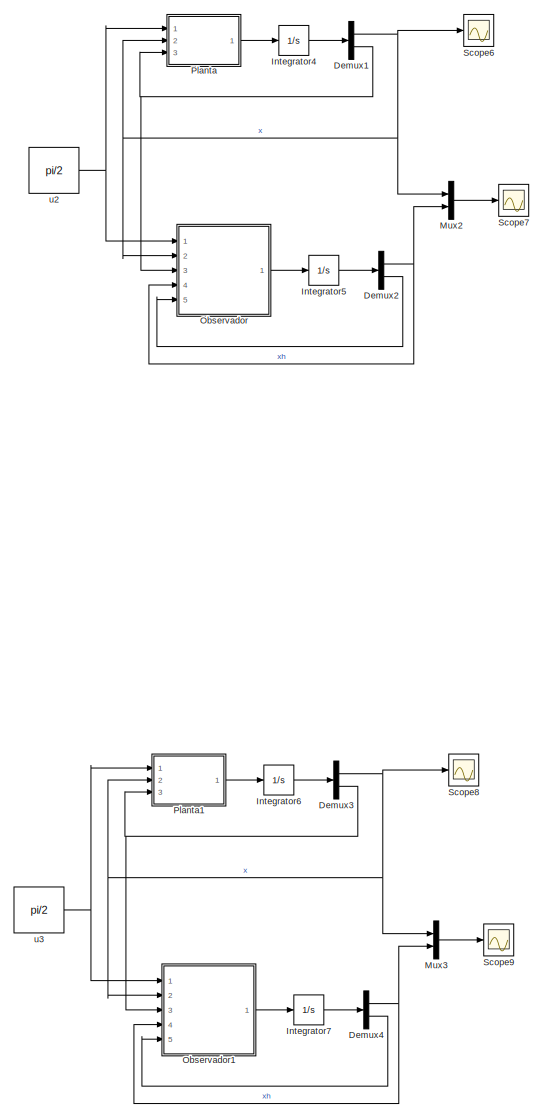
[diagram: root canvas - part 1/3, middle right region]
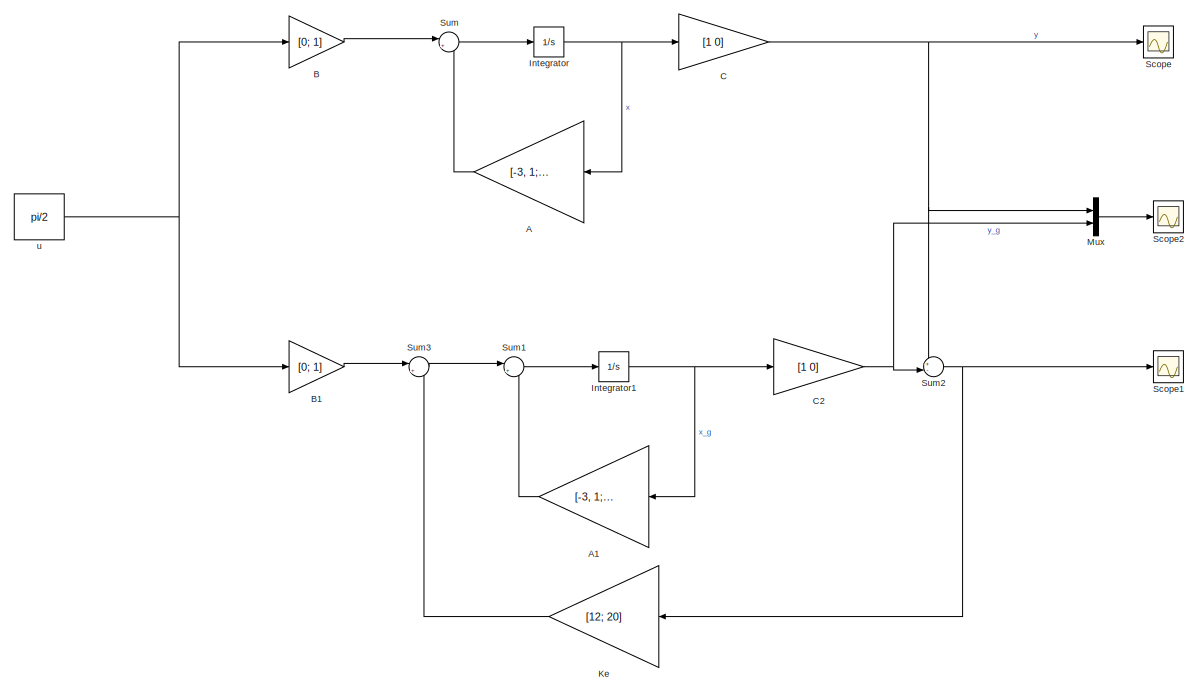
[diagram: root canvas - part 2/3, top left region]
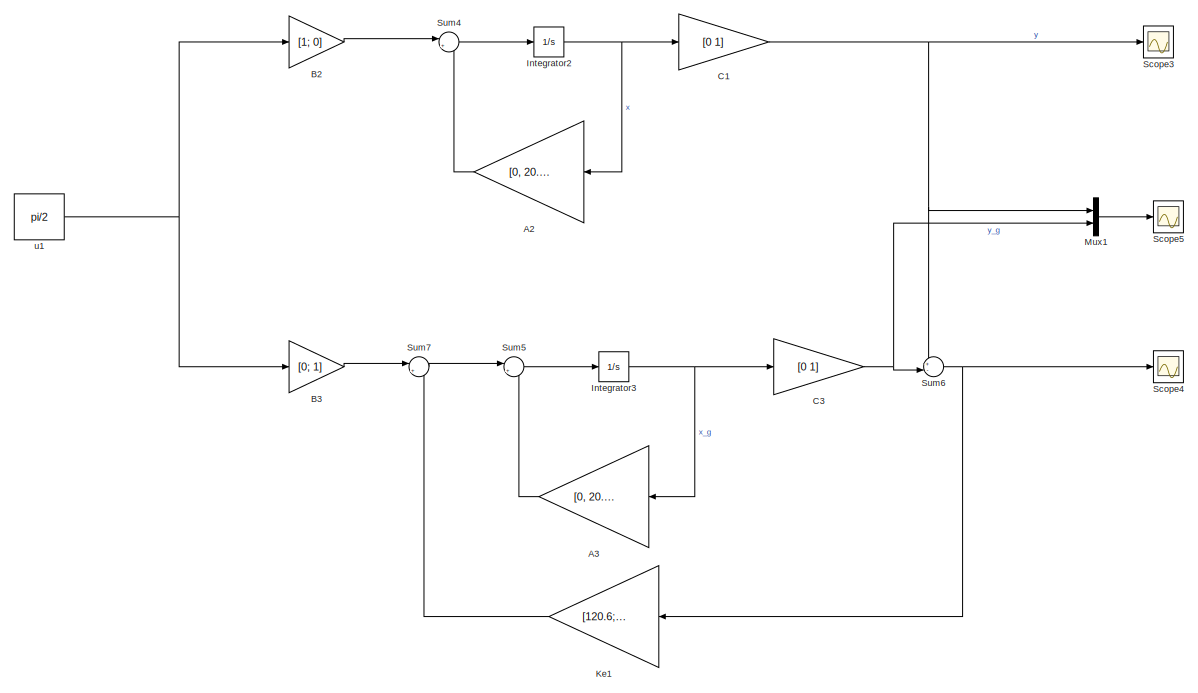
[diagram: root canvas - part 3/3, bottom left region]
MODEL slx_43d136db9c63
KIND model
CONFIG AbsTol = auto
CONFIG EnableMultiTasking = off
CONFIG FixedStep = auto
CONFIG MaxStep = auto
CONFIG MinStep = auto
CONFIG RelTol = 1e-3
CONFIG SampleTimeConstraint = Unconstrained
CONFIG SolverName = VariableStepAuto
CONFIG StartTime = 0.0
CONFIG StopTime = 10.0
BLOCK [Gain] A
  Gain = [-3, 1; 0, -5]
  Multiplication = Matrix(K*u)
BLOCK [Gain] A1
  Gain = [-3, 1; 0, -5]
  Multiplication = Matrix(K*u)
BLOCK [Gain] A2
  Gain = [0, 20.6; 1, 0]
  Multiplication = Matrix(K*u)
BLOCK [Gain] A3
  Gain = [0, 20.6; 1, 0]
  Multiplication = Matrix(K*u)
BLOCK [Gain] B
  Gain = [0; 1]
BLOCK [Gain] B1
  Gain = [0; 1]
BLOCK [Gain] B2
  Gain = [1; 0]
BLOCK [Gain] B3
  Gain = [0; 1]
BLOCK [Gain] C
  Gain = [1 0]
  Multiplication = Matrix(K*u) (u vector)
BLOCK [Gain] C1
  Gain = [0 1]
  Multiplication = Matrix(K*u) (u vector)
BLOCK [Gain] C2
  Gain = [1 0]
  Multiplication = Matrix(K*u) (u vector)
BLOCK [Gain] C3
  Gain = [0 1]
  Multiplication = Matrix(K*u) (u vector)
BLOCK [Demux] Demux1
  Outputs = 2
  Ports = [1, 2]
BLOCK [Demux] Demux2
  Outputs = 2
  Ports = [1, 2]
BLOCK [Demux] Demux3
  Outputs = 2
  Ports = [1, 2]
BLOCK [Demux] Demux4
  Outputs = 2
  Ports = [1, 2]
BLOCK [Integrator] Integrator
  InitialCondition = [1; 0]
  Ports = [1, 1]
BLOCK [Integrator] Integrator1
  Ports = [1, 1]
BLOCK [Integrator] Integrator2
  InitialCondition = [1; 0]
  Ports = [1, 1]
BLOCK [Integrator] Integrator3
  Ports = [1, 1]
BLOCK [Integrator] Integrator4
  InitialCondition = [0; 0]
  Ports = [1, 1]
BLOCK [Integrator] Integrator5
  Ports = [1, 1]
BLOCK [Integrator] Integrator6
  InitialCondition = [1; 0]
  Ports = [1, 1]
BLOCK [Integrator] Integrator7
  Ports = [1, 1]
BLOCK [Gain] Ke
  Gain = [12; 20]
  Multiplication = Matrix(K*u)
BLOCK [Gain] Ke1
  Gain = [120.6; 20]
  Multiplication = Matrix(K*u)
BLOCK [Mux] Mux
  DisplayOption = bar
  Inputs = 2
  Ports = [2, 1]
BLOCK [Mux] Mux1
  DisplayOption = bar
  Inputs = 2
  Ports = [2, 1]
BLOCK [Mux] Mux2
  DisplayOption = bar
  Inputs = 2
  Ports = [2, 1]
BLOCK [Mux] Mux3
  DisplayOption = bar
  Inputs = 2
  Ports = [2, 1]
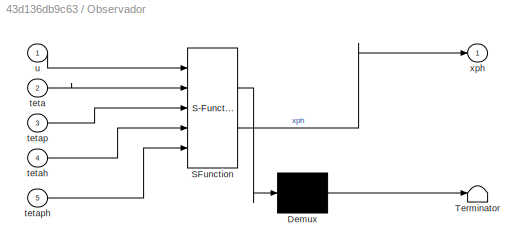
BLOCK [SubSystem] Observador
  ErrorFcn = Stateflow.Translate.translate
  PermitHierarchicalResolution = ExplicitOnly
  Ports = [5, 1]
  RequestExecContextInheritance = off
  SFBlockType = MATLAB Function
  TreatAsAtomicUnit = on
BLOCK [Demux] Observador/ Demux 
  Outputs = 1
  Ports = [1, 1]
BLOCK [S-Function] Observador/ SFunction 
  EnableBusSupport = on
  FunctionName = sf_sfun
  PortCounts = [5 2]
  Ports = [5, 2]
  SFcnIsStateOwnerBlock = off
  SFunctionDeploymentMode = off
  Tag = Stateflow S-Function 1
BLOCK [Terminator] Observador/ Terminator 
BLOCK [Inport] Observador/teta
  Port = 2
BLOCK [Inport] Observador/tetah
  Port = 4
BLOCK [Inport] Observador/tetap
  Port = 3
BLOCK [Inport] Observador/tetaph
  Port = 5
BLOCK [Inport] Observador/u
BLOCK [Outport] Observador/xph
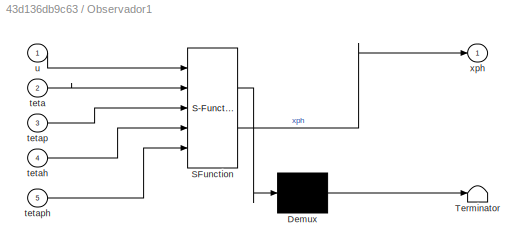
BLOCK [SubSystem] Observador1
  ErrorFcn = Stateflow.Translate.translate
  PermitHierarchicalResolution = ExplicitOnly
  Ports = [5, 1]
  RequestExecContextInheritance = off
  SFBlockType = MATLAB Function
  TreatAsAtomicUnit = on
BLOCK [Demux] Observador1/ Demux 
  Outputs = 1
  Ports = [1, 1]
BLOCK [S-Function] Observador1/ SFunction 
  EnableBusSupport = on
  FunctionName = sf_sfun
  PortCounts = [5 2]
  Ports = [5, 2]
  SFcnIsStateOwnerBlock = off
  SFunctionDeploymentMode = off
  Tag = Stateflow S-Function 3
BLOCK [Terminator] Observador1/ Terminator 
BLOCK [Inport] Observador1/teta
  Port = 2
BLOCK [Inport] Observador1/tetah
  Port = 4
BLOCK [Inport] Observador1/tetap
  Port = 3
BLOCK [Inport] Observador1/tetaph
  Port = 5
BLOCK [Inport] Observador1/u
BLOCK [Outport] Observador1/xph
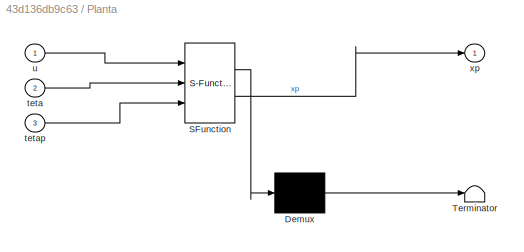
BLOCK [SubSystem] Planta
  ErrorFcn = Stateflow.Translate.translate
  PermitHierarchicalResolution = ExplicitOnly
  Ports = [3, 1]
  RequestExecContextInheritance = off
  SFBlockType = MATLAB Function
  TreatAsAtomicUnit = on
BLOCK [Demux] Planta/ Demux 
  Outputs = 1
  Ports = [1, 1]
BLOCK [S-Function] Planta/ SFunction 
  EnableBusSupport = on
  FunctionName = sf_sfun
  PortCounts = [3 2]
  Ports = [3, 2]
  SFcnIsStateOwnerBlock = off
  SFunctionDeploymentMode = off
  Tag = Stateflow S-Function 2
BLOCK [Terminator] Planta/ Terminator 
BLOCK [Inport] Planta/teta
  Port = 2
BLOCK [Inport] Planta/tetap
  Port = 3
BLOCK [Inport] Planta/u
BLOCK [Outport] Planta/xp
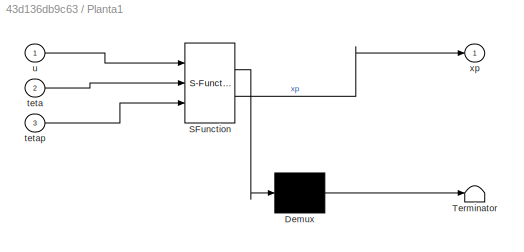
BLOCK [SubSystem] Planta1
  ErrorFcn = Stateflow.Translate.translate
  PermitHierarchicalResolution = ExplicitOnly
  Ports = [3, 1]
  RequestExecContextInheritance = off
  SFBlockType = MATLAB Function
  TreatAsAtomicUnit = on
BLOCK [Demux] Planta1/ Demux 
  Outputs = 1
  Ports = [1, 1]
BLOCK [S-Function] Planta1/ SFunction 
  EnableBusSupport = on
  FunctionName = sf_sfun
  PortCounts = [3 2]
  Ports = [3, 2]
  SFcnIsStateOwnerBlock = off
  SFunctionDeploymentMode = off
  Tag = Stateflow S-Function 4
BLOCK [Terminator] Planta1/ Terminator 
BLOCK [Inport] Planta1/teta
  Port = 2
BLOCK [Inport] Planta1/tetap
  Port = 3
BLOCK [Inport] Planta1/u
BLOCK [Outport] Planta1/xp
BLOCK [Scope] Scope
  Floating = off
  NumInputPorts = 1
  Ports = [1]
  ScopeSpecificationString = Simulink.scopes.TimeScopeBlockCfg('CurrentConfiguration', extmgr.ConfigurationSet(extmgr.Configuration('Core','General UI',true),extmgr.Configuration('Core','Source UI',true),extmgr.Configuration('Sources','WiredSimulink',true),extmgr.Configuration('Visuals','Time Domain',true,'SerializedDisplays',{struct('MinYLimReal','-0.00719','MaxYLimReal','1.11191','YLabelReal','','MinYLimMag','0.00000','MaxY...<+1446ch>
BLOCK [Scope] Scope1
  Floating = off
  NumInputPorts = 1
  Ports = [1]
  ScopeSpecificationString = Simulink.scopes.TimeScopeBlockCfg('CurrentConfiguration', extmgr.ConfigurationSet(extmgr.Configuration('Core','General UI',true),extmgr.Configuration('Core','Source UI',true),extmgr.Configuration('Sources','WiredSimulink',true,'DataLoggingVariableName','ScopeData1'),extmgr.Configuration('Visuals','Time Domain',true,'SerializedDisplays',{struct('MinYLimReal','-1.00000','MaxYLimReal','1.00000','YLab...<+1484ch>
BLOCK [Scope] Scope2
  Floating = off
  NumInputPorts = 1
  Ports = [1]
  ScopeSpecificationString = Simulink.scopes.TimeScopeBlockCfg('CurrentConfiguration', extmgr.ConfigurationSet(extmgr.Configuration('Core','General UI',true),extmgr.Configuration('Core','Source UI',true),extmgr.Configuration('Sources','WiredSimulink',true,'DataLoggingVariableName','ScopeData2'),extmgr.Configuration('Visuals','Time Domain',true,'SerializedDisplays',{struct('MinYLimReal','-0.125','MaxYLimReal','1.125','YLabelRe...<+1475ch>
BLOCK [Scope] Scope3
  Floating = off
  NumInputPorts = 1
  Ports = [1]
  ScopeSpecificationString = Simulink.scopes.TimeScopeBlockCfg('CurrentConfiguration', extmgr.ConfigurationSet(extmgr.Configuration('Core','General UI',true),extmgr.Configuration('Core','Source UI',true),extmgr.Configuration('Sources','WiredSimulink',true,'DataLoggingVariableName','ScopeData3'),extmgr.Configuration('Visuals','Time Domain',true,'SerializedDisplays',{struct('MinYLimReal','-0.01309','MaxYLimReal','0.11781','YLab...<+1481ch>
BLOCK [Scope] Scope4
  Floating = off
  NumInputPorts = 1
  Ports = [1]
  ScopeSpecificationString = Simulink.scopes.TimeScopeBlockCfg('CurrentConfiguration', extmgr.ConfigurationSet(extmgr.Configuration('Core','General UI',true),extmgr.Configuration('Core','Source UI',true),extmgr.Configuration('Sources','WiredSimulink',true,'DataLoggingVariableName','ScopeData4'),extmgr.Configuration('Visuals','Time Domain',true,'SerializedDisplays',{struct('MinYLimReal','-1.00000','MaxYLimReal','1.00000','YLab...<+1484ch>
BLOCK [Scope] Scope5
  Floating = off
  NumInputPorts = 1
  Ports = [1]
  ScopeSpecificationString = Simulink.scopes.TimeScopeBlockCfg('CurrentConfiguration', extmgr.ConfigurationSet(extmgr.Configuration('Core','General UI',true),extmgr.Configuration('Core','Source UI',true),extmgr.Configuration('Sources','WiredSimulink',true,'DataLoggingVariableName','ScopeData5'),extmgr.Configuration('Visuals','Time Domain',true,'SerializedDisplays',{struct('MinYLimReal','-954519357049278208.00000','MaxYLimReal...<+1625ch>
BLOCK [Scope] Scope6
  Floating = off
  NumInputPorts = 1
  Ports = [1]
  ScopeSpecificationString = Simulink.scopes.TimeScopeBlockCfg('CurrentConfiguration', extmgr.ConfigurationSet(extmgr.Configuration('Core','General UI',true),extmgr.Configuration('Core','Source UI',true),extmgr.Configuration('Sources','WiredSimulink',true,'DataLoggingVariableName','ScopeData6'),extmgr.Configuration('Visuals','Time Domain',true,'SerializedDisplays',{struct('MinYLimReal','-0.01309','MaxYLimReal','0.11781','YLab...<+1481ch>
BLOCK [Scope] Scope7
  Floating = off
  NumInputPorts = 1
  Ports = [1]
  ScopeSpecificationString = Simulink.scopes.TimeScopeBlockCfg('CurrentConfiguration', extmgr.ConfigurationSet(extmgr.Configuration('Core','General UI',true),extmgr.Configuration('Core','Source UI',true),extmgr.Configuration('Sources','WiredSimulink',true,'DataLoggingVariableName','ScopeData7'),extmgr.Configuration('Visuals','Time Domain',true,'SerializedDisplays',{struct('MinYLimReal','0.10145','MaxYLimReal','0.10748','YLabe...<+1530ch>
BLOCK [Scope] Scope8
  Floating = off
  NumInputPorts = 1
  Ports = [1]
  ScopeSpecificationString = Simulink.scopes.TimeScopeBlockCfg('CurrentConfiguration', extmgr.ConfigurationSet(extmgr.Configuration('Core','General UI',true),extmgr.Configuration('Core','Source UI',true),extmgr.Configuration('Sources','WiredSimulink',true,'DataLoggingVariableName','ScopeData8'),extmgr.Configuration('Visuals','Time Domain',true,'SerializedDisplays',{struct('MinYLimReal','-0.01309','MaxYLimReal','0.11781','YLab...<+1481ch>
BLOCK [Scope] Scope9
  Floating = off
  NumInputPorts = 1
  Ports = [1]
  ScopeSpecificationString = Simulink.scopes.TimeScopeBlockCfg('CurrentConfiguration', extmgr.ConfigurationSet(extmgr.Configuration('Core','General UI',true),extmgr.Configuration('Core','Source UI',true),extmgr.Configuration('Sources','WiredSimulink',true,'DataLoggingVariableName','ScopeData9'),extmgr.Configuration('Visuals','Time Domain',true,'SerializedDisplays',{struct('MinYLimReal','-8273945174308253696.00000','MaxYLimRea...<+1632ch>
BLOCK [Sum] Sum
  Inputs = |++
  Ports = [2, 1]
BLOCK [Sum] Sum1
  Inputs = |++
  Ports = [2, 1]
BLOCK [Sum] Sum2
  Inputs = +-|
  Ports = [2, 1]
BLOCK [Sum] Sum3
  Inputs = |++
  Ports = [2, 1]
BLOCK [Sum] Sum4
  Inputs = |++
  Ports = [2, 1]
BLOCK [Sum] Sum5
  Inputs = |++
  Ports = [2, 1]
BLOCK [Sum] Sum6
  Inputs = +-|
  Ports = [2, 1]
BLOCK [Sum] Sum7
  Inputs = |++
  Ports = [2, 1]
BLOCK [Constant] u
  Value = pi/2
  VectorParams1D = off
BLOCK [Constant] u1
  Value = pi/2
  VectorParams1D = off
BLOCK [Constant] u2
  Value = pi/2
  VectorParams1D = off
BLOCK [Constant] u3
  Value = pi/2
  VectorParams1D = off
LINE A1:1 -> Sum1:2
LINE A2:1 -> Sum4:2
LINE A3:1 -> Sum5:2
LINE A:1 -> Sum:2
LINE B1:1 -> Sum3:1
LINE B2:1 -> Sum4:1
LINE B3:1 -> Sum7:1
LINE B:1 -> Sum:1
NET C1:1 -> Mux1:1, Scope3:1, Sum6:1
NET C2:1 -> Mux:2, Sum2:2
NET C3:1 -> Mux1:2, Sum6:2
NET C:1 -> Mux:1, Scope:1, Sum2:1
NET Demux1:1 -> Mux2:1, Observador:2, Planta:2, Scope6:1
NET Demux1:2 -> Observador:3, Planta:3
NET Demux2:1 -> Mux2:2, Observador:4
LINE Demux2:2 -> Observador:5
NET Demux3:1 -> Mux3:1, Observador1:2, Planta1:2, Scope8:1
NET Demux3:2 -> Observador1:3, Planta1:3
NET Demux4:1 -> Mux3:2, Observador1:4
LINE Demux4:2 -> Observador1:5
NET Integrator1:1 -> A1:1, C2:1
NET Integrator2:1 -> A2:1, C1:1
NET Integrator3:1 -> A3:1, C3:1
LINE Integrator4:1 -> Demux1:1
LINE Integrator5:1 -> Demux2:1
LINE Integrator6:1 -> Demux3:1
LINE Integrator7:1 -> Demux4:1
NET Integrator:1 -> A:1, C:1
LINE Ke1:1 -> Sum7:2
LINE Ke:1 -> Sum3:2
LINE Mux1:1 -> Scope5:1
LINE Mux2:1 -> Scope7:1
LINE Mux3:1 -> Scope9:1
LINE Mux:1 -> Scope2:1
LINE Observador1:1 -> Integrator7:1
LINE Observador:1 -> Integrator5:1
LINE Planta1:1 -> Integrator6:1
LINE Planta:1 -> Integrator4:1
LINE Sum1:1 -> Integrator1:1
NET Sum2:1 -> Ke:1, Scope1:1
LINE Sum3:1 -> Sum1:1
LINE Sum4:1 -> Integrator2:1
LINE Sum5:1 -> Integrator3:1
NET Sum6:1 -> Ke1:1, Scope4:1
LINE Sum7:1 -> Sum5:1
LINE Sum:1 -> Integrator:1
NET u1:1 -> B2:1, B3:1
NET u2:1 -> Observador:1, Planta:1
NET u3:1 -> Observador1:1, Planta1:1
NET u:1 -> B1:1, B:1
note: NET lines group one-source signal fan-out (src -> all destinations, sorted); 1:1 wires keep LINE
CHART Observador states=1 transitions=1
  STATE_LABEL 'eML_blk_kernel()'
  STATE_LABEL 'SCRIPT:\nfunction xph = fcn(u, teta, tetap, tetah, tetaph)\nA = [-3.1, 1; 0, -4.8];\nB = [0; 1];\nC = [1, 0];\nK = [12; 20];\n\n% Observador\nxh = [tetah; tetaph];\nx = [teta; tetap];\n\ny = C * x;\nyh = C *xh;\nxph = A * xh + B * u + K *(y - yh);'
CHART Planta states=1 transitions=1
  STATE_LABEL 'eML_blk_kernel()'
  STATE_LABEL 'SCRIPT:\nfunction xp = fcn(u, teta, tetap)\n\nA = [-3, 1; 0, -5];\nB = [0; 1];\n\n% Planta\nx = [teta; tetap];\nxp = A*x + B*u;\n\n'
CHART Observador1 states=1 transitions=1
  STATE_LABEL 'eML_blk_kernel()'
  STATE_LABEL 'SCRIPT:\nfunction xph = fcn(u, teta, tetap, tetah, tetaph)\nA = [0, 20.6; 1, 0];\nB = [0; 1];\nC = [0 1];\nK = [120.6; 20];\n\n% Observador\nxh = [tetah; tetaph];\nx = [teta; tetap];\n\ny = C * x;\nyh = C *xh;\nxph = A * xh + B * u + K * (y - yh);'
CHART Planta1 states=1 transitions=1
  STATE_LABEL 'eML_blk_kernel()'
  STATE_LABEL 'SCRIPT:\nfunction xp = fcn(u, teta, tetap)\n\nA = [0, 20.6; 1, 0];\nB = [0; 1];\n\n% Planta\nx = [teta; tetap];\nxp = A*x + B*u;\n\n'
CHART  states=0 transitions=0
CHART  states=0 transitions=0
CHART  states=0 transitions=0
CHART  states=0 transitions=0
